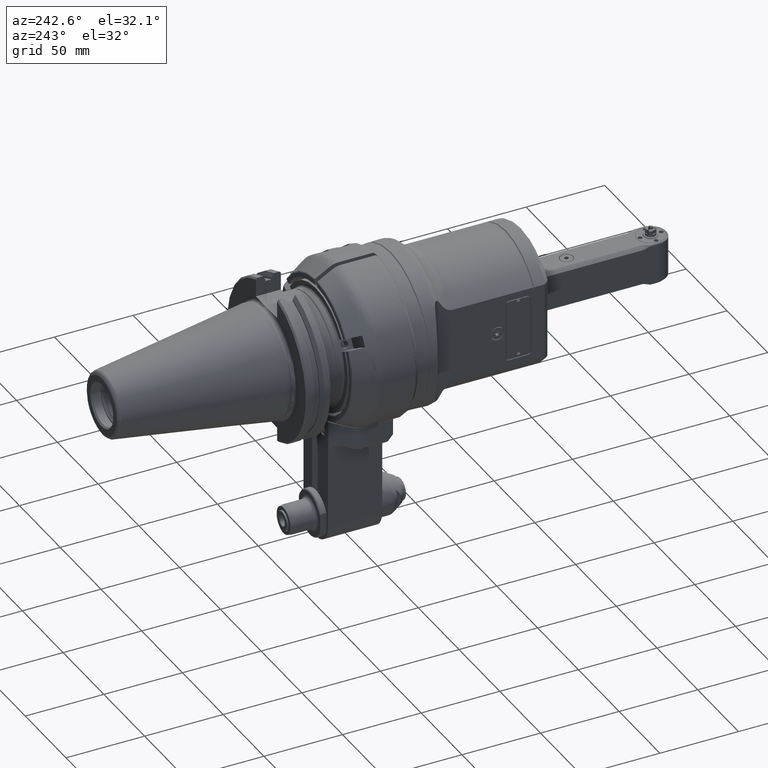
[diagram: clean part render]
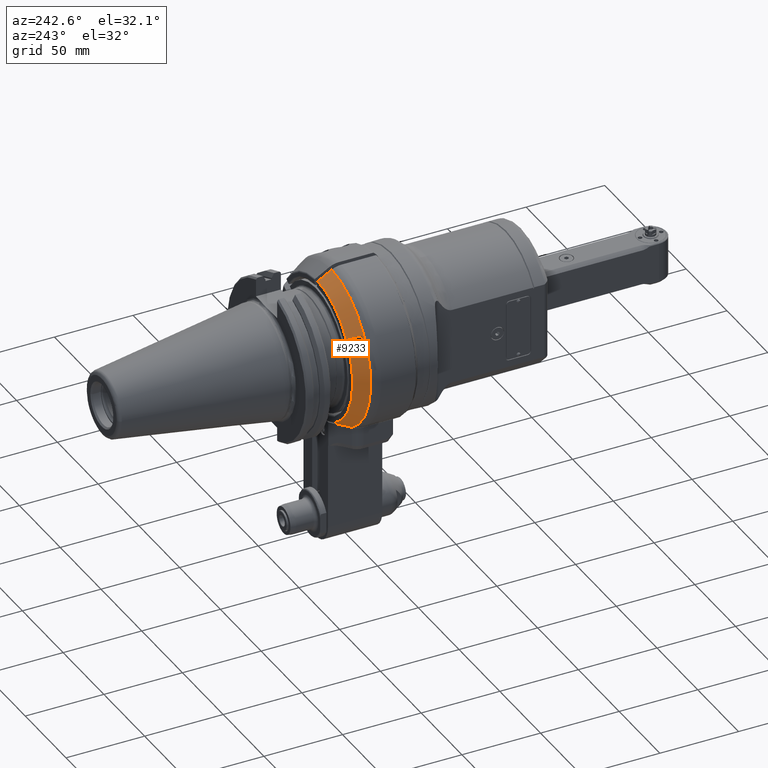
[diagram: same view with one face highlighted and labeled with its STEP entity id]
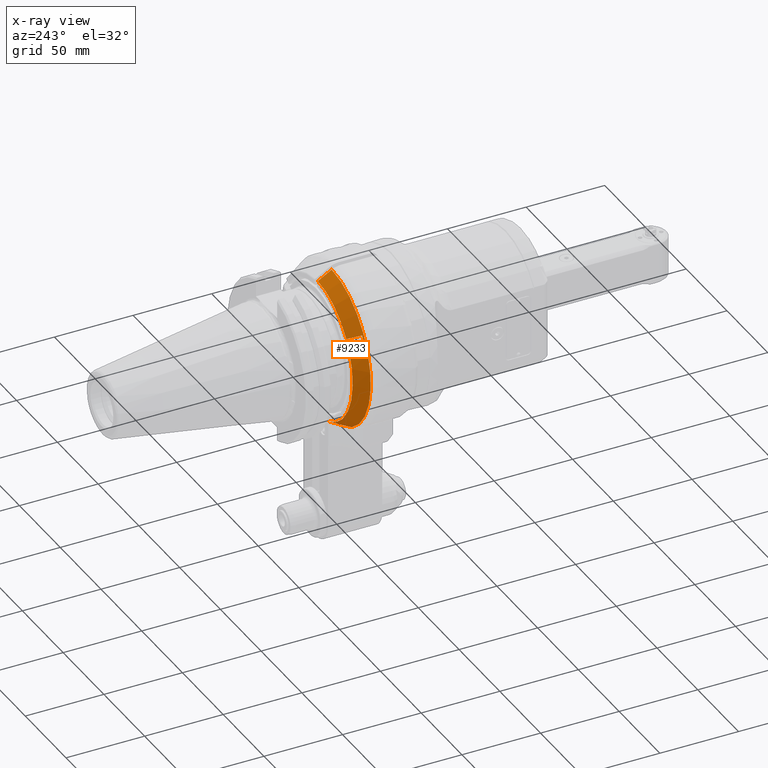
[diagram: x-ray of the same camera — body ghosted, the highlighted face saturated]
A machine part, auxiliary view. The second image highlights one B-rep face of the part: STEP entity #9233.
The next image is the same camera in x-ray: the body ghosted, the highlighted face saturated — about 0% of this face is hidden behind the body in this view.
In plain terms, the highlighted conical surface has half-angle 30 deg.
Its self-contained STEP definition (entity closure, byte-faithful):
#41=(
BOUNDED_CURVE()
B_SPLINE_CURVE(2,(#14726,#14727,#14728),.UNSPECIFIED.,.F.,.F.)
B_SPLINE_CURVE_WITH_KNOTS((3,3),(-2.33426321152175,-0.488410463975353),
 .UNSPECIFIED.)
CURVE()
GEOMETRIC_REPRESENTATION_ITEM()
RATIONAL_B_SPLINE_CURVE((1.03298558316692,1.0304977863853,1.01131834162874))
REPRESENTATION_ITEM('')
);
#140=B_SPLINE_CURVE_WITH_KNOTS('',3,(#14699,#14700,#14701,#14702,#14703,
#14704,#14705,#14706,#14707,#14708),.UNSPECIFIED.,.F.,.F.,(4,3,3,4),(1.45844672518169E-5,
0.3333333333333,0.6666666666667,1.),.UNSPECIFIED.);
#142=B_SPLINE_CURVE_WITH_KNOTS('',3,(#14732,#14733,#14734,#14735,#14736,
#14737,#14738,#14739,#14740,#14741),.UNSPECIFIED.,.F.,.F.,(4,3,3,4),(0.,
0.3333333333333,0.6666666666667,0.999997742938072),.UNSPECIFIED.);
#143=B_SPLINE_CURVE_WITH_KNOTS('',3,(#14744,#14745,#14746,#14747,#14748,
#14749,#14750,#14751,#14752,#14753),.UNSPECIFIED.,.F.,.F.,(4,3,3,4),(0.,
0.3333333333333,0.6666666666667,0.99998640556226),.UNSPECIFIED.);
#271=CONICAL_SURFACE('',#9984,46.84048999,0.523598775598299);
#2251=FACE_OUTER_BOUND('',#2832,.T.);
#2832=EDGE_LOOP('',(#6747,#6748,#6749,#6750,#6751,#6752,#6753,#6754));
#3490=CIRCLE('',#9981,48.90747728811);
#3492=CIRCLE('',#9985,49.39230484541);
#3493=CIRCLE('',#9986,44.28867513459);
#3494=CIRCLE('',#9987,44.28867513459);
#4093=VERTEX_POINT('',#14684);
#4098=VERTEX_POINT('',#14694);
#4099=VERTEX_POINT('',#14698);
#4103=VERTEX_POINT('',#14724);
#4104=VERTEX_POINT('',#14725);
#4105=VERTEX_POINT('',#14729);
#4106=VERTEX_POINT('',#14731);
#4107=VERTEX_POINT('',#14743);
#5106=EDGE_CURVE('',#4098,#4093,#3490,.T.);
#5107=EDGE_CURVE('',#4099,#4093,#140,.T.);
#5112=EDGE_CURVE('',#4103,#4104,#41,.T.);
#5113=EDGE_CURVE('',#4105,#4103,#3492,.T.);
#5114=EDGE_CURVE('',#4105,#4106,#142,.T.);
#5115=EDGE_CURVE('',#4099,#4106,#3493,.T.);
#5116=EDGE_CURVE('',#4098,#4107,#143,.T.);
#5117=EDGE_CURVE('',#4104,#4107,#3494,.T.);
#6747=ORIENTED_EDGE('',*,*,#5112,.F.);
#6748=ORIENTED_EDGE('',*,*,#5113,.F.);
#6749=ORIENTED_EDGE('',*,*,#5114,.T.);
#6750=ORIENTED_EDGE('',*,*,#5115,.F.);
#6751=ORIENTED_EDGE('',*,*,#5107,.T.);
#6752=ORIENTED_EDGE('',*,*,#5106,.F.);
#6753=ORIENTED_EDGE('',*,*,#5116,.T.);
#6754=ORIENTED_EDGE('',*,*,#5117,.F.);
#9233=ADVANCED_FACE('',(#2251),#271,.T.);
#9981=AXIS2_PLACEMENT_3D('',#14696,#11442,#11443);
#9984=AXIS2_PLACEMENT_3D('',#14723,#11450,#11451);
#9985=AXIS2_PLACEMENT_3D('',#14730,#11452,#11453);
#9986=AXIS2_PLACEMENT_3D('',#14742,#11454,#11455);
#9987=AXIS2_PLACEMENT_3D('',#14754,#11456,#11457);
#11442=DIRECTION('center_axis',(0.,1.,0.));
#11443=DIRECTION('ref_axis',(-0.899586791598834,0.,0.436742034135616));
#11450=DIRECTION('center_axis',(0.,-1.,0.));
#11451=DIRECTION('ref_axis',(0.,0.,1.));
#11452=DIRECTION('center_axis',(0.,-1.,0.));
#11453=DIRECTION('ref_axis',(-0.0303691031364992,0.,0.999538752412674));
#11454=DIRECTION('center_axis',(0.,1.,0.));
#11455=DIRECTION('ref_axis',(-0.823803402997795,0.,0.566875606468697));
#11456=DIRECTION('center_axis',(0.,1.,0.));
#11457=DIRECTION('ref_axis',(-0.317304540867809,0.,-0.948323693864426));
#14684=CARTESIAN_POINT('',(-40.4965205788,31.,27.42212894174));
#14694=CARTESIAN_POINT('',(-43.9965205788,31.,21.35995111525));
#14696=CARTESIAN_POINT('Origin',(0.,31.,0.));
#14698=CARTESIAN_POINT('',(-36.4851613012648,39.0000000548273,25.1061695833765));
#14699=CARTESIAN_POINT('Ctrl Pts',(-36.485161359532,39.0000000936611,25.1061696166802));
#14700=CARTESIAN_POINT('Ctrl Pts',(-36.9237968085169,38.125472871542,25.3594159112278));
#14701=CARTESIAN_POINT('Ctrl Pts',(-37.3647027218586,37.2463248721713,25.613973058983));
#14702=CARTESIAN_POINT('Ctrl Pts',(-37.8080305227304,36.3622606669419,25.8699284841555));
#14703=CARTESIAN_POINT('Ctrl Pts',(-38.2513777215504,35.4781577792034,26.1258951087387));
#14704=CARTESIAN_POINT('Ctrl Pts',(-38.697147019846,34.5891382553766,26.3832601331062));
#14705=CARTESIAN_POINT('Ctrl Pts',(-39.1452392762464,33.6954052774806,26.6419663179608));
#14706=CARTESIAN_POINT('Ctrl Pts',(-39.5933315326467,32.8016722995849,26.9006725028153));
#14707=CARTESIAN_POINT('Ctrl Pts',(-40.0437467471518,31.90322586762,27.1607198481569));
#14708=CARTESIAN_POINT('Ctrl Pts',(-40.4965205787996,31.,27.4221289417408));
#14723=CARTESIAN_POINT('Origin',(0.,34.58012701892,0.));
#14724=CARTESIAN_POINT('',(-25.9923022764028,30.1602540417411,-42.0000000010911));
#14725=CARTESIAN_POINT('',(-14.0529976876996,39.0000000156182,-42.0000000043829));
#14726=CARTESIAN_POINT('Ctrl Pts',(-25.9923022753561,30.1602540443008,-42.));
#14727=CARTESIAN_POINT('Ctrl Pts',(-19.6974303359118,35.897889917066,-42.));
#14728=CARTESIAN_POINT('Ctrl Pts',(-14.0529976830654,39.000000025361,-42.));
#14729=CARTESIAN_POINT('',(-1.50000010664755,30.1602661977814,49.3695157362103));
#14730=CARTESIAN_POINT('Origin',(0.,30.16025403784,0.));
#14731=CARTESIAN_POINT('',(-1.50000000009857,39.0000000065761,44.263266316055));
#14732=CARTESIAN_POINT('Ctrl Pts',(-1.5,30.16027835559,49.36950871544));
#14733=CARTESIAN_POINT('Ctrl Pts',(-1.5,31.15363488574,48.79572940103));
#14734=CARTESIAN_POINT('Ctrl Pts',(-1.5,32.1433046360749,48.2240704165351));
#14735=CARTESIAN_POINT('Ctrl Pts',(-1.5,33.1292684962106,47.654541989676));
#14736=CARTESIAN_POINT('Ctrl Pts',(-1.5,34.1152323563466,47.0850135628167));
#14737=CARTESIAN_POINT('Ctrl Pts',(-1.5,35.0974903262834,46.5176156935933));
#14738=CARTESIAN_POINT('Ctrl Pts',(-1.5,36.0759523873419,45.952399473544));
#14739=CARTESIAN_POINT('Ctrl Pts',(-1.5,37.0544078230518,45.387187080679));
#14740=CARTESIAN_POINT('Ctrl Pts',(-1.5,38.0290674012886,44.8241563074435));
#14741=CARTESIAN_POINT('Ctrl Pts',(-1.5,39.0000000078018,44.2632663181778));
#14742=CARTESIAN_POINT('Origin',(0.,39.,0.));
#14743=CARTESIAN_POINT('',(-39.9851613007821,39.0000000511205,19.0439917559579));
#14744=CARTESIAN_POINT('Ctrl Pts',(-43.9965205787991,31.,21.3599511152515));
#14745=CARTESIAN_POINT('Ctrl Pts',(-43.5438641275876,31.90299170867,21.0986097912941));
#14746=CARTESIAN_POINT('Ctrl Pts',(-43.093527087109,32.8012822310399,20.8386075797476));
#14747=CARTESIAN_POINT('Ctrl Pts',(-42.645475155855,33.6949348087514,20.5799246766273));
#14748=CARTESIAN_POINT('Ctrl Pts',(-42.197423224601,34.5885873864632,20.3212417735068));
#14749=CARTESIAN_POINT('Ctrl Pts',(-41.7516564025718,35.4776020195168,20.0638781788124));
#14750=CARTESIAN_POINT('Ctrl Pts',(-41.3082697014596,36.3617837075936,19.8078887475702));
#14751=CARTESIAN_POINT('Ctrl Pts',(-40.8649010831263,37.2459293358114,19.5519097564252));
#14752=CARTESIAN_POINT('Ctrl Pts',(-40.4239123915756,38.1252424132515,19.2973048166488));
#14753=CARTESIAN_POINT('Ctrl Pts',(-39.9851613548341,39.000000087329,19.0439917874789));
#14754=CARTESIAN_POINT('Origin',(0.,39.,0.));